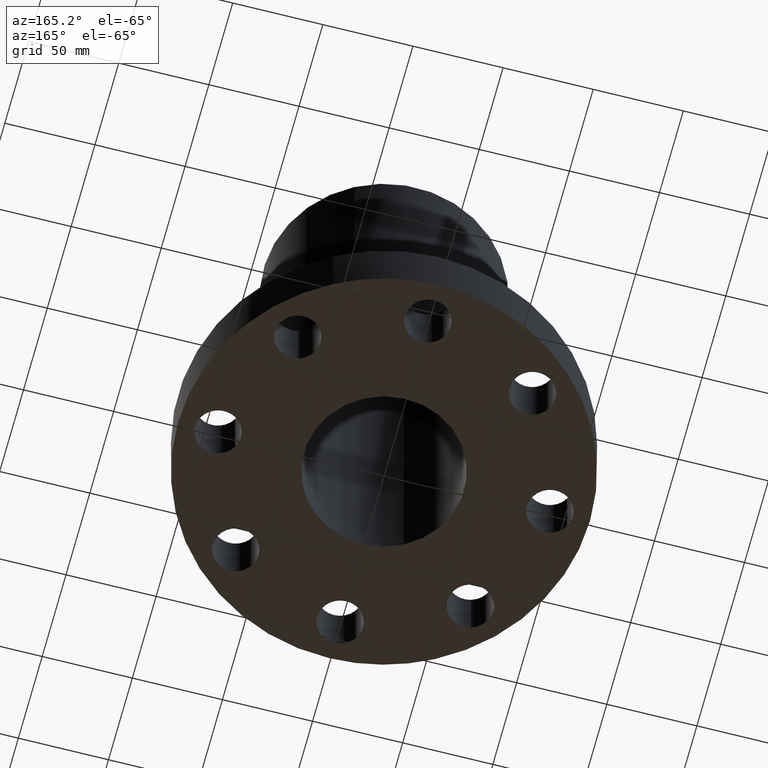
[diagram: clean part render]
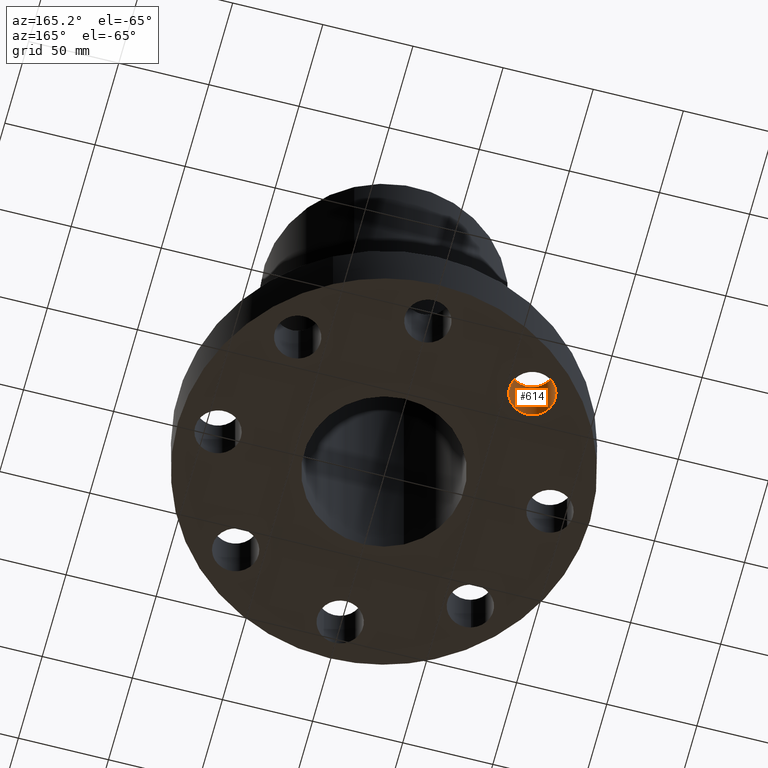
[diagram: same view with one face highlighted and labeled with its STEP entity id]
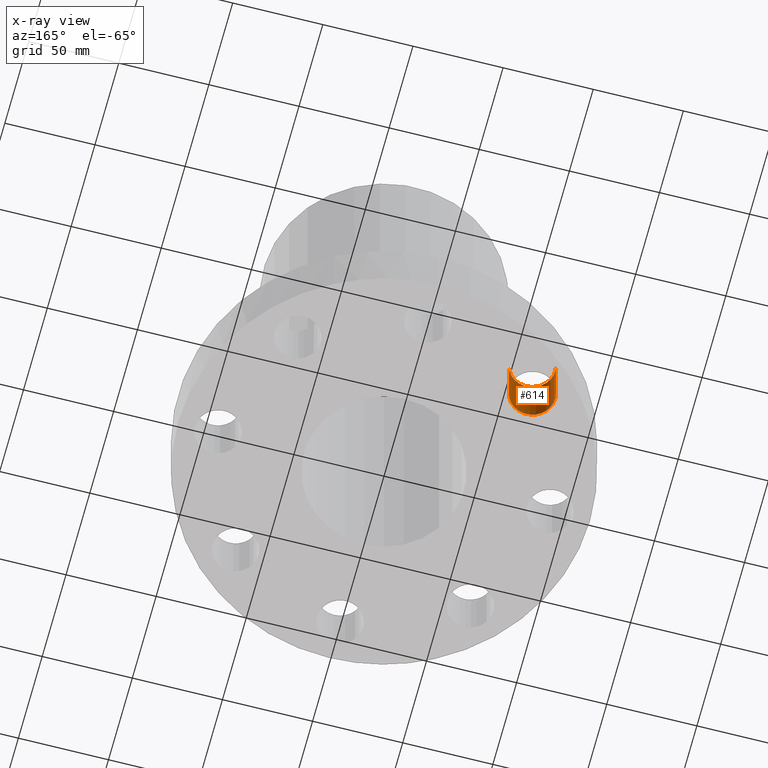
[diagram: x-ray of the same camera — body ghosted, the highlighted face saturated]
A machine part, auxiliary view. The second image highlights one B-rep face of the part: STEP entity #614.
The next image is the same camera in x-ray: the body ghosted, the highlighted face saturated — about 0% of this face is hidden behind the body in this view.
In plain terms, the highlighted cylindrical surface (edge-blend (fillet) strip) has radius 12.7 mm, axis along (0, 0, 1).
Its self-contained STEP definition (entity closure, byte-faithful):
#211=AXIS2_PLACEMENT_3D('Circle Axis2P3D',#209,#210,$) ;
#575=AXIS2_PLACEMENT_3D('Cylinder Axis2P3D',#572,#573,#574) ;
#605=AXIS2_PLACEMENT_3D('Circle Axis2P3D',#603,#604,$) ;
#209=CARTESIAN_POINT('Axis2P3D Location',(-2.56326208181,2.56326208181,1.38000000001)) ;
#213=CARTESIAN_POINT('Vertex',(-2.08348726682,2.42249231624,1.38000000001)) ;
#215=CARTESIAN_POINT('Vertex',(-3.04303689681,2.70403184738,1.38000000001)) ;
#572=CARTESIAN_POINT('Axis2P3D Location',(-2.56326208181,2.56326208181,0.00393700787402)) ;
#577=CARTESIAN_POINT('Line Origine',(-2.08348726682,2.42249231624,0.690000000003)) ;
#581=CARTESIAN_POINT('Vertex',(-2.08348726682,2.42249231624,2.2401153548E-016)) ;
#584=CARTESIAN_POINT('Line Origine',(-3.04303689681,2.70403184738,0.690000000003)) ;
#588=CARTESIAN_POINT('Vertex',(-3.04303689681,2.70403184738,2.2401153548E-016)) ;
#603=CARTESIAN_POINT('Axis2P3D Location',(-2.56326208181,2.56326208181,0.)) ;
#210=DIRECTION('Axis2P3D Direction',(0.,0.,-0.0393700787402)) ;
#573=DIRECTION('Axis2P3D Direction',(0.,0.,0.0393700787402)) ;
#574=DIRECTION('Axis2P3D XDirection',(-0.0377775444876,0.0110842335096,0.)) ;
#578=DIRECTION('Vector Direction',(0.,0.,0.0393700787402)) ;
#585=DIRECTION('Vector Direction',(0.,0.,0.0393700787402)) ;
#604=DIRECTION('Axis2P3D Direction',(0.,0.,0.0393700787402)) ;
#579=VECTOR('Line Direction',#578,0.0393700787402) ;
#586=VECTOR('Line Direction',#585,0.0393700787402) ;
#609=ORIENTED_EDGE('',*,*,#590,.F.) ;
#610=ORIENTED_EDGE('',*,*,#217,.F.) ;
#611=ORIENTED_EDGE('',*,*,#583,.T.) ;
#612=ORIENTED_EDGE('',*,*,#607,.T.) ;
#614=ADVANCED_FACE('PartBody',(#613),#576,.F.) ;
#212=CIRCLE('generated circle',#211,0.500000000002) ;
#606=CIRCLE('generated circle',#605,0.500000000002) ;
#576=CYLINDRICAL_SURFACE('generated cylinder',#575,0.500000000002) ;
#217=EDGE_CURVE('',#214,#216,#212,.T.) ;
#583=EDGE_CURVE('',#214,#582,#580,.F.) ;
#590=EDGE_CURVE('',#216,#589,#587,.F.) ;
#607=EDGE_CURVE('',#582,#589,#606,.F.) ;
#608=EDGE_LOOP('',(#609,#610,#611,#612)) ;
#613=FACE_OUTER_BOUND('',#608,.T.) ;
#580=LINE('Line',#577,#579) ;
#587=LINE('Line',#584,#586) ;
#214=VERTEX_POINT('',#213) ;
#216=VERTEX_POINT('',#215) ;
#582=VERTEX_POINT('',#581) ;
#589=VERTEX_POINT('',#588) ;